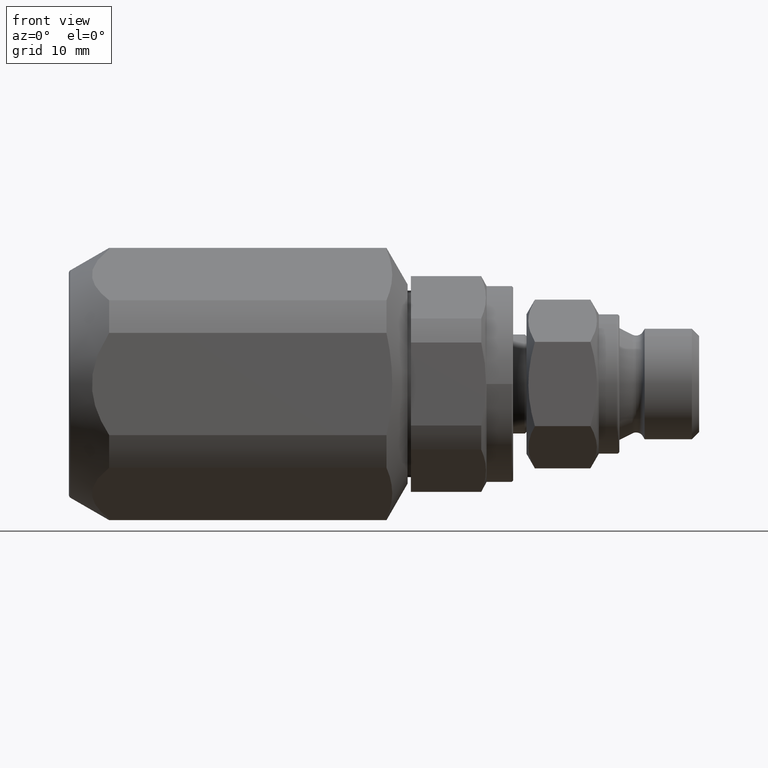
[diagram: clean part render]
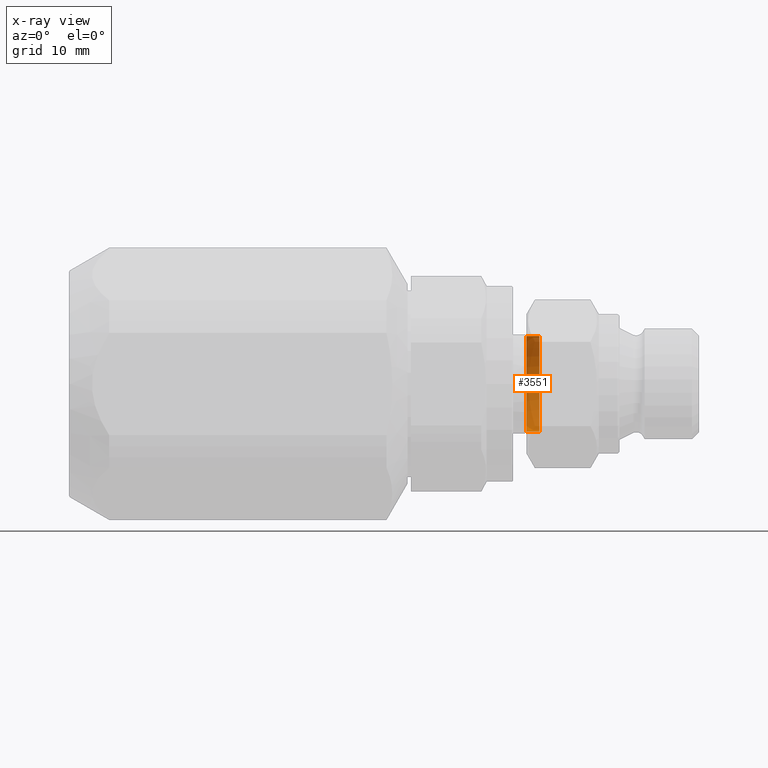
[diagram: x-ray — body ghosted, one internal face saturated and labeled with its STEP entity id]
A machine part, front view, then the same camera in x-ray: the body is ghosted and one INTERNAL B-rep face — a face not visible from any outside direction — is saturated and labeled: STEP entity #3551.
In plain terms, the highlighted cylindrical surface (partial cylindrical patch) has radius 7.2 mm, axis along (-1, -0, -0).
Its self-contained STEP definition (entity closure, byte-faithful):
#227 = EDGE_LOOP ( 'NONE', ( #3506, #3521, #3504, #3512, #3524 ) ) ;
#333 = VERTEX_POINT ( 'NONE', #623 ) ;
#334 = VERTEX_POINT ( 'NONE', #624 ) ;
#337 = VERTEX_POINT ( 'NONE', #627 ) ;
#372 = VERTEX_POINT ( 'NONE', #662 ) ;
#373 = VERTEX_POINT ( 'NONE', #663 ) ;
#623 = CARTESIAN_POINT ( 'NONE',  ( 68.90000000000002000, 0.0000000000000000000, 7.199999999999999300 ) ) ;
#624 = CARTESIAN_POINT ( 'NONE',  ( 68.90000000000002000, 8.817456953860940300E-016, -7.199999999999999300 ) ) ;
#627 = CARTESIAN_POINT ( 'NONE',  ( 70.85000000000002300, 0.0000000000000000000, 7.200000000000000200 ) ) ;
#662 = CARTESIAN_POINT ( 'NONE',  ( 70.85000000000002300, 8.817456953860942300E-016, -7.200000000000000200 ) ) ;
#663 = CARTESIAN_POINT ( 'NONE',  ( 70.85000000000002300, 3.599999999999999200, -6.235382907247956300 ) ) ;
#882 = CARTESIAN_POINT ( 'NONE',  ( 70.85000000000002300, 0.0000000000000000000, 0.0000000000000000000 ) ) ;
#883 = DIRECTION ( 'NONE',  ( 1.000000000000000000, -0.0000000000000000000, -0.0000000000000000000 ) ) ;
#884 = DIRECTION ( 'NONE',  ( 0.0000000000000000000, 0.0000000000000000000, 1.000000000000000000 ) ) ;
#1268 = CARTESIAN_POINT ( 'NONE',  ( 68.90000000000002000, 0.0000000000000000000, 0.0000000000000000000 ) ) ;
#1269 = DIRECTION ( 'NONE',  ( -1.000000000000000000, -0.0000000000000000000, -0.0000000000000000000 ) ) ;
#1270 = DIRECTION ( 'NONE',  ( 0.0000000000000000000, 0.0000000000000000000, 1.000000000000000000 ) ) ;
#1282 = CARTESIAN_POINT ( 'NONE',  ( 24.40000000000001300, 8.817456953860942300E-016, -7.200000000000000200 ) ) ;
#1283 = DIRECTION ( 'NONE',  ( -1.000000000000000000, -0.0000000000000000000, -0.0000000000000000000 ) ) ;
#1284 = CARTESIAN_POINT ( 'NONE',  ( 24.40000000000001300, 0.0000000000000000000, 7.200000000000000200 ) ) ;
#1285 = DIRECTION ( 'NONE',  ( -1.000000000000000000, -0.0000000000000000000, -0.0000000000000000000 ) ) ;
#1286 = CARTESIAN_POINT ( 'NONE',  ( 70.85000000000002300, 0.0000000000000000000, 0.0000000000000000000 ) ) ;
#1287 = DIRECTION ( 'NONE',  ( 1.000000000000000000, -0.0000000000000000000, -0.0000000000000000000 ) ) ;
#1288 = DIRECTION ( 'NONE',  ( 0.0000000000000000000, 0.0000000000000000000, 1.000000000000000000 ) ) ;
#2169 = CARTESIAN_POINT ( 'NONE',  ( 24.40000000000001300, 0.0000000000000000000, 0.0000000000000000000 ) ) ;
#2170 = DIRECTION ( 'NONE',  ( -1.000000000000000000, -0.0000000000000000000, -0.0000000000000000000 ) ) ;
#2171 = DIRECTION ( 'NONE',  ( 0.0000000000000000000, 0.0000000000000000000, 1.000000000000000000 ) ) ;
#2263 = EDGE_CURVE ( 'NONE', #372, #373, #3032, .T. ) ;
#2333 = EDGE_CURVE ( 'NONE', #333, #334, #3112, .T. ) ;
#2339 = EDGE_CURVE ( 'NONE', #372, #334, #3121, .T. ) ;
#2340 = EDGE_CURVE ( 'NONE', #337, #333, #3123, .T. ) ;
#2341 = EDGE_CURVE ( 'NONE', #373, #337, #3125, .T. ) ;
#2452 = AXIS2_PLACEMENT_3D ( 'NONE', #882, #883, #884 ) ;
#2485 = AXIS2_PLACEMENT_3D ( 'NONE', #1268, #1269, #1270 ) ;
#2487 = AXIS2_PLACEMENT_3D ( 'NONE', #1286, #1287, #1288 ) ;
#2605 = AXIS2_PLACEMENT_3D ( 'NONE', #2169, #2170, #2171 ) ;
#3032 = CIRCLE ( 'NONE', #2452, 7.200000000000000200 ) ;
#3112 = CIRCLE ( 'NONE', #2485, 7.199999999999999300 ) ;
#3121 = LINE ( 'NONE', #1282, #3122 ) ;
#3122 = VECTOR ( 'NONE', #1283, 1000.000000000000000 ) ;
#3123 = LINE ( 'NONE', #1284, #3124 ) ;
#3124 = VECTOR ( 'NONE', #1285, 1000.000000000000000 ) ;
#3125 = CIRCLE ( 'NONE', #2487, 7.200000000000000200 ) ;
#3387 = FACE_OUTER_BOUND ( 'NONE', #227, .T. ) ;
#3388 = CYLINDRICAL_SURFACE ( 'NONE', #2605, 7.200000000000000200 ) ;
#3504 = ORIENTED_EDGE ( 'NONE', *, *, #2333, .F. ) ;
#3506 = ORIENTED_EDGE ( 'NONE', *, *, #2263, .F. ) ;
#3512 = ORIENTED_EDGE ( 'NONE', *, *, #2340, .F. ) ;
#3521 = ORIENTED_EDGE ( 'NONE', *, *, #2339, .T. ) ;
#3524 = ORIENTED_EDGE ( 'NONE', *, *, #2341, .F. ) ;
#3551 = ADVANCED_FACE ( 'NONE', ( #3387 ), #3388, .T. ) ;